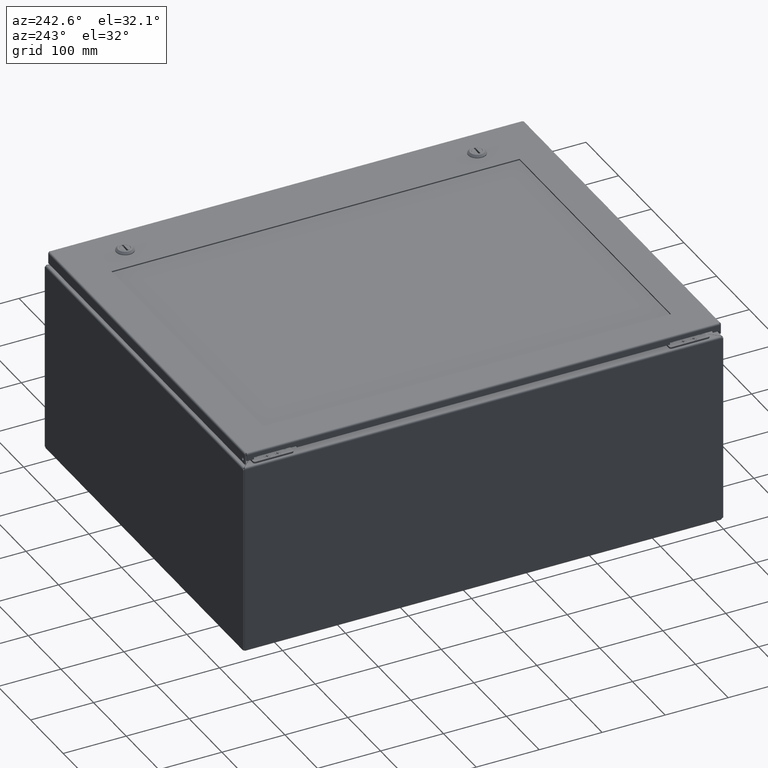
[diagram: clean part render]
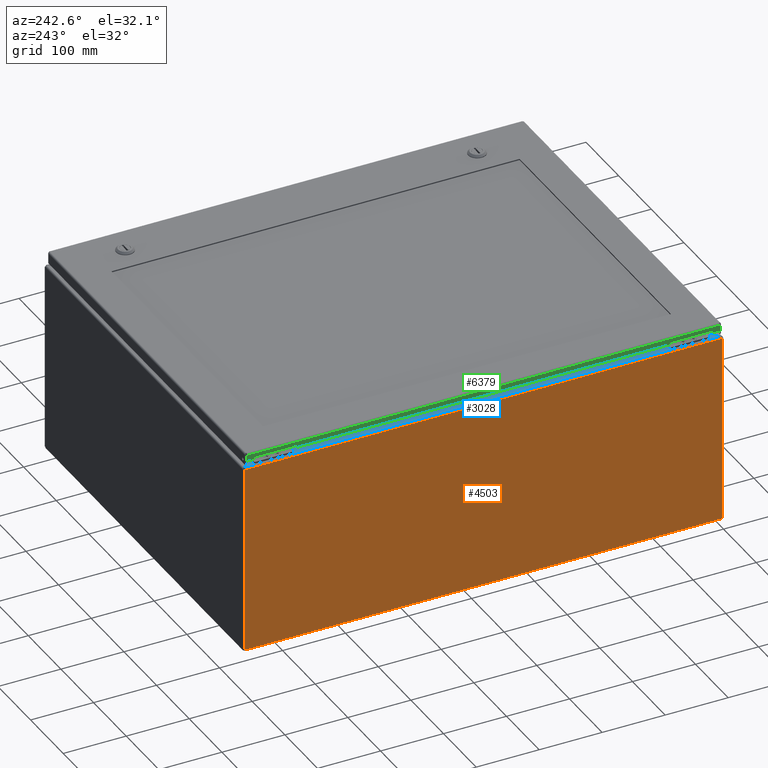
[diagram: same view with three faces highlighted in distinct colors, each labeled with its STEP entity id]
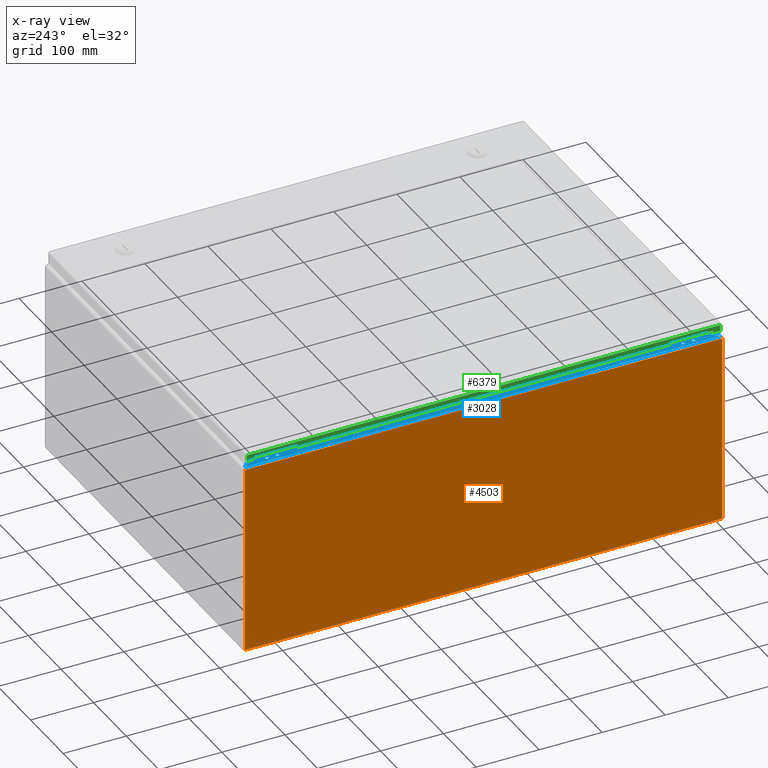
[diagram: x-ray of the same camera — body ghosted, the three highlighted faces saturated]
A machine part, auxiliary view with three faces highlighted in distinct colors.
The next image is the same camera in x-ray (body ghosted, the three faces saturated) — at least one of them is partly hidden behind the body in this view.
Their STEP definitions:

[orange] entity #4503 — the highlighted planar face has unit normal (1, 0, 0).
#3083=CARTESIAN_POINT('',(7.649174E-017,0.085048543456039,11.894750000000000));
#3084=VERTEX_POINT('',#3083);
#3113=CARTESIAN_POINT('',(-8.261108E-015,29.914951456543349,11.894750000000007));
#3114=VERTEX_POINT('',#3113);
#3128=CARTESIAN_POINT('',(5.396727E-015,0.085048543456039,11.894750000000000));
#3129=DIRECTION('',(0.0,1.0,0.0));
#3130=VECTOR('',#3129,29.829902913087309);
#3131=LINE('',#3128,#3130);
#3132=EDGE_CURVE('',#3084,#3114,#3131,.T.);
#3450=CARTESIAN_POINT('',(-3.759023E-015,29.919999999999995,11.894750000000007));
#3451=VERTEX_POINT('',#3450);
#3458=CARTESIAN_POINT('',(-3.736046E-015,29.914951456543349,11.894750000000009));
#3459=DIRECTION('',(0.0,1.0,0.0));
#3460=VECTOR('',#3459,0.005048543456645);
#3461=LINE('',#3458,#3460);
#3462=EDGE_CURVE('',#3114,#3451,#3461,.T.);
#3628=CARTESIAN_POINT('',(5.376277E-015,0.080000000000007,11.894750000000000));
#3629=VERTEX_POINT('',#3628);
#3630=CARTESIAN_POINT('',(5.398273E-015,0.080000000000006,11.894750000000000));
#3631=DIRECTION('',(0.0,1.0,0.0));
#3632=VECTOR('',#3631,0.005048543456033);
#3633=LINE('',#3630,#3632);
#3634=EDGE_CURVE('',#3629,#3084,#3633,.T.);
#3659=CARTESIAN_POINT('',(5.635656E-015,0.080000000000004,0.126969561406607));
#3660=VERTEX_POINT('',#3659);
#3661=CARTESIAN_POINT('',(6.095742E-015,0.080000000000001,11.894750000000000));
#3662=DIRECTION('',(0.0,0.0,-1.0));
#3663=VECTOR('',#3662,11.767780438593393);
#3664=LINE('',#3661,#3663);
#3665=EDGE_CURVE('',#3629,#3660,#3664,.T.);
#4391=CARTESIAN_POINT('',(-3.007777E-015,29.886393473394296,0.105250000000000));
#4392=VERTEX_POINT('',#4391);
#4399=CARTESIAN_POINT('',(-3.500209E-015,29.919999999999995,0.126969561406610));
#4400=VERTEX_POINT('',#4399);
#4401=CARTESIAN_POINT('',(-3.021052E-015,29.938473115756342,0.061526884243671));
#4402=DIRECTION('',(1.0,0.0,0.0));
#4403=DIRECTION('',(0.0,0.0,-1.0));
#4404=AXIS2_PLACEMENT_3D('',#4401,#4402,#4403);
#4405=CIRCLE('',#4404,0.068000000000000);
#4406=EDGE_CURVE('',#4400,#4392,#4405,.T.);
#4470=CARTESIAN_POINT('',(1.188376E-015,15.000000000000002,6.008901884243669));
#4471=DIRECTION('',(1.0,0.0,0.0));
#4472=DIRECTION('',(0.0,0.0,-1.0));
#4473=AXIS2_PLACEMENT_3D('',#4470,#4471,#4472);
#4474=PLANE('',#4473);
#4475=ORIENTED_EDGE('',*,*,#3634,.T.);
#4476=ORIENTED_EDGE('',*,*,#3132,.T.);
#4477=ORIENTED_EDGE('',*,*,#3462,.T.);
#4478=CARTESIAN_POINT('',(-3.041258E-015,29.919999999999995,0.126969561406610));
#4479=DIRECTION('',(0.0,0.0,1.0));
#4480=VECTOR('',#4479,11.767780438593400);
#4481=LINE('',#4478,#4480);
#4482=EDGE_CURVE('',#4400,#3451,#4481,.T.);
#4483=ORIENTED_EDGE('',*,*,#4482,.F.);
#4484=ORIENTED_EDGE('',*,*,#4406,.T.);
#4485=CARTESIAN_POINT('',(6.107510E-015,0.113606526605711,0.105250000000000));
#4486=VERTEX_POINT('',#4485);
#4487=CARTESIAN_POINT('',(-3.007785E-015,29.886393473394296,0.105250000000000));
#4488=DIRECTION('',(0.0,-1.0,0.0));
#4489=VECTOR('',#4488,29.772786946788585);
#4490=LINE('',#4487,#4489);
#4491=EDGE_CURVE('',#4392,#4486,#4490,.T.);
#4492=ORIENTED_EDGE('',*,*,#4491,.T.);
#4493=CARTESIAN_POINT('',(6.126124E-015,0.061526884243670,0.061526884243664));
#4494=DIRECTION('',(1.0,0.0,0.0));
#4495=DIRECTION('',(0.0,0.0,-1.0));
#4496=AXIS2_PLACEMENT_3D('',#4493,#4494,#4495);
#4497=CIRCLE('',#4496,0.068000000000000);
#4498=EDGE_CURVE('',#4486,#3660,#4497,.T.);
#4499=ORIENTED_EDGE('',*,*,#4498,.T.);
#4500=ORIENTED_EDGE('',*,*,#3665,.F.);
#4501=EDGE_LOOP('',(#4475,#4476,#4477,#4483,#4484,#4492,#4499,#4500));
#4502=FACE_OUTER_BOUND('',#4501,.T.);
#4503=ADVANCED_FACE('',(#4502),#4474,.F.);

[blue] entity #3028 — the highlighted planar face has unit normal (0, 0, -1).
#135=CARTESIAN_POINT('',(0.493999999999992,27.669999999999398,12.000000000000021));
#136=VERTEX_POINT('',#135);
#137=CARTESIAN_POINT('',(0.399999999999992,27.669999999999398,12.000000000000021));
#138=DIRECTION('',(0.0,0.0,-1.0));
#139=DIRECTION('',(-1.0,0.0,0.0));
#140=AXIS2_PLACEMENT_3D('',#137,#138,#139);
#141=CIRCLE('',#140,0.094000000000000);
#142=EDGE_CURVE('',#136,#136,#141,.T.);
#163=CARTESIAN_POINT('',(0.493999999999992,28.329999999999398,12.000000000000021));
#164=VERTEX_POINT('',#163);
#165=CARTESIAN_POINT('',(0.399999999999992,28.329999999999398,12.000000000000021));
#166=DIRECTION('',(0.0,0.0,-1.0));
#167=DIRECTION('',(-1.0,0.0,0.0));
#168=AXIS2_PLACEMENT_3D('',#165,#166,#167);
#169=CIRCLE('',#168,0.094000000000000);
#170=EDGE_CURVE('',#164,#164,#169,.T.);
#191=CARTESIAN_POINT('',(0.493999999999998,2.329999999999996,12.000000000000020));
#192=VERTEX_POINT('',#191);
#193=CARTESIAN_POINT('',(0.399999999999998,2.329999999999996,12.000000000000021));
#194=DIRECTION('',(0.0,0.0,-1.0));
#195=DIRECTION('',(-1.0,0.0,0.0));
#196=AXIS2_PLACEMENT_3D('',#193,#194,#195);
#197=CIRCLE('',#196,0.094000000000000);
#198=EDGE_CURVE('',#192,#192,#197,.T.);
#219=CARTESIAN_POINT('',(0.493999999999998,1.669999999999996,12.000000000000018));
#220=VERTEX_POINT('',#219);
#221=CARTESIAN_POINT('',(0.399999999999998,1.669999999999996,12.000000000000021));
#222=DIRECTION('',(0.0,0.0,-1.0));
#223=DIRECTION('',(-1.0,0.0,0.0));
#224=AXIS2_PLACEMENT_3D('',#221,#222,#223);
#225=CIRCLE('',#224,0.094000000000000);
#226=EDGE_CURVE('',#220,#220,#225,.T.);
#1979=CARTESIAN_POINT('',(0.707249999999999,29.281701456543367,12.000000000000027));
#1980=VERTEX_POINT('',#1979);
#2028=CARTESIAN_POINT('',(0.707250000000018,0.718298543456036,12.000000000000021));
#2029=VERTEX_POINT('',#2028);
#2055=CARTESIAN_POINT('',(0.707250000000018,0.718298543456037,12.000000000000020));
#2056=DIRECTION('',(0.0,1.0,0.0));
#2057=VECTOR('',#2056,28.563402913087330);
#2058=LINE('',#2055,#2057);
#2059=EDGE_CURVE('',#2029,#1980,#2058,.T.);
#2599=CARTESIAN_POINT('',(0.105250000000019,0.116298543456042,12.000000000000016));
#2600=VERTEX_POINT('',#2599);
#2601=CARTESIAN_POINT('',(0.707250000000018,0.718298543456036,12.000000000000020));
#2602=DIRECTION('',(-0.707106781186546,-0.707106781186549,-4.173003E-015));
#2603=VECTOR('',#2602,0.851356564548598);
#2604=LINE('',#2601,#2603);
#2605=EDGE_CURVE('',#2029,#2600,#2604,.T.);
#2993=CARTESIAN_POINT('',(0.415151884243675,14.999999999999998,12.000000000000021));
#2994=DIRECTION('',(0.0,0.0,-1.0));
#2995=DIRECTION('',(-1.0,0.0,0.0));
#2996=AXIS2_PLACEMENT_3D('',#2993,#2994,#2995);
#2997=PLANE('',#2996);
#2998=ORIENTED_EDGE('',*,*,#2059,.T.);
#2999=CARTESIAN_POINT('',(0.105250000000004,29.883701456543353,12.000000000000023));
#3000=VERTEX_POINT('',#2999);
#3001=CARTESIAN_POINT('',(0.105250000000004,29.883701456543356,12.000000000000023));
#3002=DIRECTION('',(0.707106781186552,-0.707106781186543,2.086502E-015));
#3003=VECTOR('',#3002,0.851356564548589);
#3004=LINE('',#3001,#3003);
#3005=EDGE_CURVE('',#3000,#1980,#3004,.T.);
#3006=ORIENTED_EDGE('',*,*,#3005,.F.);
#3007=CARTESIAN_POINT('',(0.105250000000008,29.883701456543356,12.000000000000021));
#3008=DIRECTION('',(0.0,-1.0,0.0));
#3009=VECTOR('',#3008,29.767402913087317);
#3010=LINE('',#3007,#3009);
#3011=EDGE_CURVE('',#3000,#2600,#3010,.T.);
#3012=ORIENTED_EDGE('',*,*,#3011,.T.);
#3013=ORIENTED_EDGE('',*,*,#2605,.F.);
#3014=EDGE_LOOP('',(#2998,#3006,#3012,#3013));
#3015=FACE_OUTER_BOUND('',#3014,.T.);
#3016=ORIENTED_EDGE('',*,*,#142,.T.);
#3017=EDGE_LOOP('',(#3016));
#3018=FACE_BOUND('',#3017,.T.);
#3019=ORIENTED_EDGE('',*,*,#170,.T.);
#3020=EDGE_LOOP('',(#3019));
#3021=FACE_BOUND('',#3020,.T.);
#3022=ORIENTED_EDGE('',*,*,#198,.T.);
#3023=EDGE_LOOP('',(#3022));
#3024=FACE_BOUND('',#3023,.T.);
#3025=ORIENTED_EDGE('',*,*,#226,.T.);
#3026=EDGE_LOOP('',(#3025));
#3027=FACE_BOUND('',#3026,.T.);
#3028=ADVANCED_FACE('',(#3015,#3018,#3021,#3024,#3027),#2997,.F.);

[green] entity #6379 — the highlighted planar face has unit normal (1, 0, -0).
#6068=CARTESIAN_POINT('',(23.874999999999996,0.085048543456041,0.480000000000007));
#6069=VERTEX_POINT('',#6068);
#6076=CARTESIAN_POINT('',(23.874999999999996,0.532000000000002,0.480000000000001));
#6077=VERTEX_POINT('',#6076);
#6078=CARTESIAN_POINT('',(23.874999999999993,0.532000000000001,0.480000000000001));
#6079=DIRECTION('',(0.0,-1.0,0.0));
#6080=VECTOR('',#6079,0.446951456543961);
#6081=LINE('',#6078,#6080);
#6082=EDGE_CURVE('',#6077,#6069,#6081,.T.);
#6107=CARTESIAN_POINT('',(23.874999999999996,0.532000000000002,0.355000000000001));
#6108=VERTEX_POINT('',#6107);
#6109=CARTESIAN_POINT('',(23.874999999999996,0.532000000000001,0.355000000000001));
#6110=DIRECTION('',(0.0,0.0,1.0));
#6111=VECTOR('',#6110,0.125000000000000);
#6112=LINE('',#6109,#6111);
#6113=EDGE_CURVE('',#6108,#6077,#6112,.T.);
#6138=CARTESIAN_POINT('',(23.874999999999996,3.219000000000002,0.355000000000001));
#6139=VERTEX_POINT('',#6138);
#6140=CARTESIAN_POINT('',(23.874999999999993,3.219000000000002,0.355000000000001));
#6141=DIRECTION('',(0.0,-1.0,0.0));
#6142=VECTOR('',#6141,2.687000000000001);
#6143=LINE('',#6140,#6142);
#6144=EDGE_CURVE('',#6139,#6108,#6143,.T.);
#6169=CARTESIAN_POINT('',(23.874999999999996,3.219000000000002,0.480000000000002));
#6170=VERTEX_POINT('',#6169);
#6171=CARTESIAN_POINT('',(23.874999999999996,3.219000000000003,0.480000000000002));
#6172=DIRECTION('',(0.0,0.0,-1.0));
#6173=VECTOR('',#6172,0.125000000000000);
#6174=LINE('',#6171,#6173);
#6175=EDGE_CURVE('',#6170,#6139,#6174,.T.);
#6200=CARTESIAN_POINT('',(23.874999999999989,26.530999999999985,0.480000000000009));
#6201=VERTEX_POINT('',#6200);
#6202=CARTESIAN_POINT('',(23.874999999999989,26.530999999999985,0.480000000000009));
#6203=DIRECTION('',(0.0,-1.0,0.0));
#6204=VECTOR('',#6203,23.311999999999983);
#6205=LINE('',#6202,#6204);
#6206=EDGE_CURVE('',#6201,#6170,#6205,.T.);
#6231=CARTESIAN_POINT('',(23.874999999999989,26.530999999999985,0.355000000000005));
#6232=VERTEX_POINT('',#6231);
#6233=CARTESIAN_POINT('',(23.874999999999989,26.530999999999985,0.355000000000005));
#6234=DIRECTION('',(0.0,0.0,1.0));
#6235=VECTOR('',#6234,0.125000000000004);
#6236=LINE('',#6233,#6235);
#6237=EDGE_CURVE('',#6232,#6201,#6236,.T.);
#6262=CARTESIAN_POINT('',(23.874999999999989,29.217999999999982,0.355000000000005));
#6263=VERTEX_POINT('',#6262);
#6264=CARTESIAN_POINT('',(23.874999999999993,29.217999999999982,0.355000000000005));
#6265=DIRECTION('',(0.0,-1.0,0.0));
#6266=VECTOR('',#6265,2.686999999999998);
#6267=LINE('',#6264,#6266);
#6268=EDGE_CURVE('',#6263,#6232,#6267,.T.);
#6293=CARTESIAN_POINT('',(23.874999999999989,29.217999999999982,0.480000000000009));
#6294=VERTEX_POINT('',#6293);
#6295=CARTESIAN_POINT('',(23.874999999999989,29.217999999999982,0.480000000000009));
#6296=DIRECTION('',(0.0,0.0,-1.0));
#6297=VECTOR('',#6296,0.125000000000004);
#6298=LINE('',#6295,#6297);
#6299=EDGE_CURVE('',#6294,#6263,#6298,.T.);
#6324=CARTESIAN_POINT('',(23.874999999999989,29.664951456543967,0.480000000000009));
#6325=VERTEX_POINT('',#6324);
#6326=CARTESIAN_POINT('',(23.874999999999993,29.664951456543967,0.480000000000009));
#6327=DIRECTION('',(0.0,-1.0,0.0));
#6328=VECTOR('',#6327,0.446951456543985);
#6329=LINE('',#6326,#6328);
#6330=EDGE_CURVE('',#6325,#6294,#6329,.T.);
#6341=CARTESIAN_POINT('',(23.874999999999993,14.875000000000000,0.374696241644324));
#6342=DIRECTION('',(-1.0,0.0,0.0));
#6343=DIRECTION('',(0.0,0.0,1.0));
#6344=AXIS2_PLACEMENT_3D('',#6341,#6342,#6343);
#6345=PLANE('',#6344);
#6346=ORIENTED_EDGE('',*,*,#6330,.T.);
#6347=ORIENTED_EDGE('',*,*,#6299,.T.);
#6348=ORIENTED_EDGE('',*,*,#6268,.T.);
#6349=ORIENTED_EDGE('',*,*,#6237,.T.);
#6350=ORIENTED_EDGE('',*,*,#6206,.T.);
#6351=ORIENTED_EDGE('',*,*,#6175,.T.);
#6352=ORIENTED_EDGE('',*,*,#6144,.T.);
#6353=ORIENTED_EDGE('',*,*,#6113,.T.);
#6354=ORIENTED_EDGE('',*,*,#6082,.T.);
#6355=CARTESIAN_POINT('',(23.874999999999996,0.085048543456040,0.105250000000004));
#6356=VERTEX_POINT('',#6355);
#6357=CARTESIAN_POINT('',(23.874999999999989,0.085048543456041,0.105250000000004));
#6358=DIRECTION('',(0.0,0.0,1.0));
#6359=VECTOR('',#6358,0.374750000000003);
#6360=LINE('',#6357,#6359);
#6361=EDGE_CURVE('',#6356,#6069,#6360,.T.);
#6362=ORIENTED_EDGE('',*,*,#6361,.F.);
#6363=CARTESIAN_POINT('',(23.874999999999989,29.664951456543967,0.105250000000001));
#6364=VERTEX_POINT('',#6363);
#6365=CARTESIAN_POINT('',(23.874999999999996,0.085048543456038,0.105249999999998));
#6366=DIRECTION('',(0.0,1.0,0.0));
#6367=VECTOR('',#6366,29.579902913087928);
#6368=LINE('',#6365,#6367);
#6369=EDGE_CURVE('',#6356,#6364,#6368,.T.);
#6370=ORIENTED_EDGE('',*,*,#6369,.T.);
#6371=CARTESIAN_POINT('',(23.874999999999986,29.664951456543967,0.480000000000009));
#6372=DIRECTION('',(0.0,0.0,-1.0));
#6373=VECTOR('',#6372,0.374750000000008);
#6374=LINE('',#6371,#6373);
#6375=EDGE_CURVE('',#6325,#6364,#6374,.T.);
#6376=ORIENTED_EDGE('',*,*,#6375,.F.);
#6377=EDGE_LOOP('',(#6346,#6347,#6348,#6349,#6350,#6351,#6352,#6353,#6354,#6362,#6370,#6376));
#6378=FACE_OUTER_BOUND('',#6377,.T.);
#6379=ADVANCED_FACE('',(#6378),#6345,.F.);